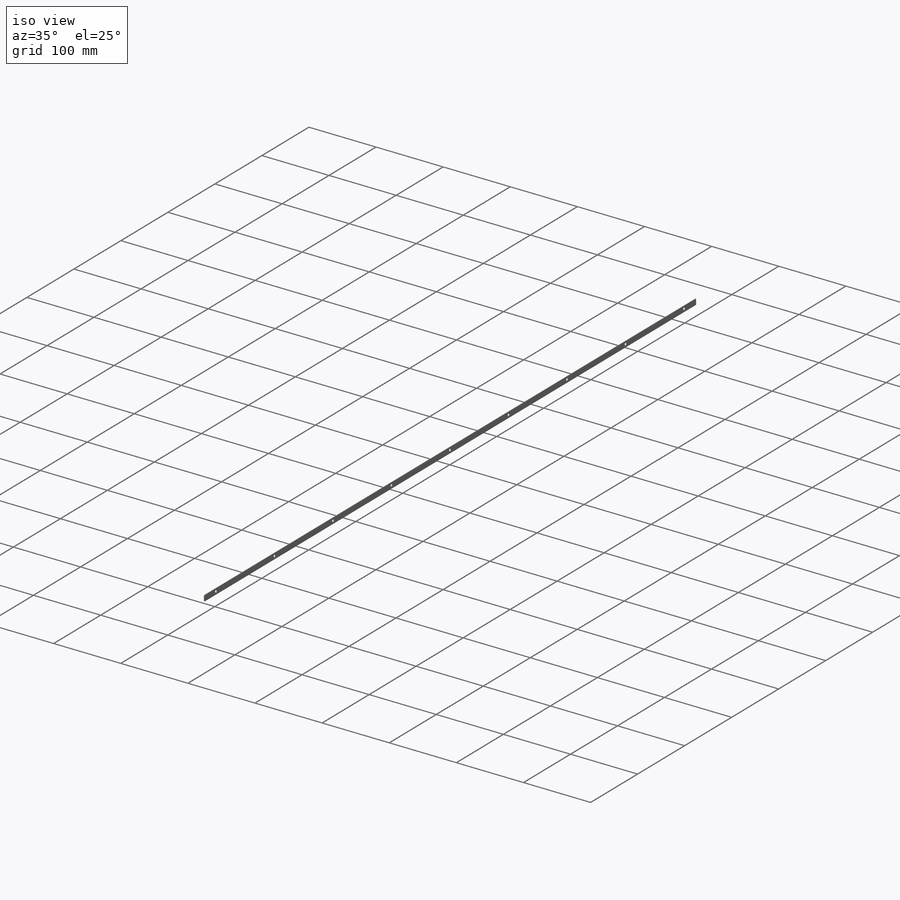
[diagram: iso view]
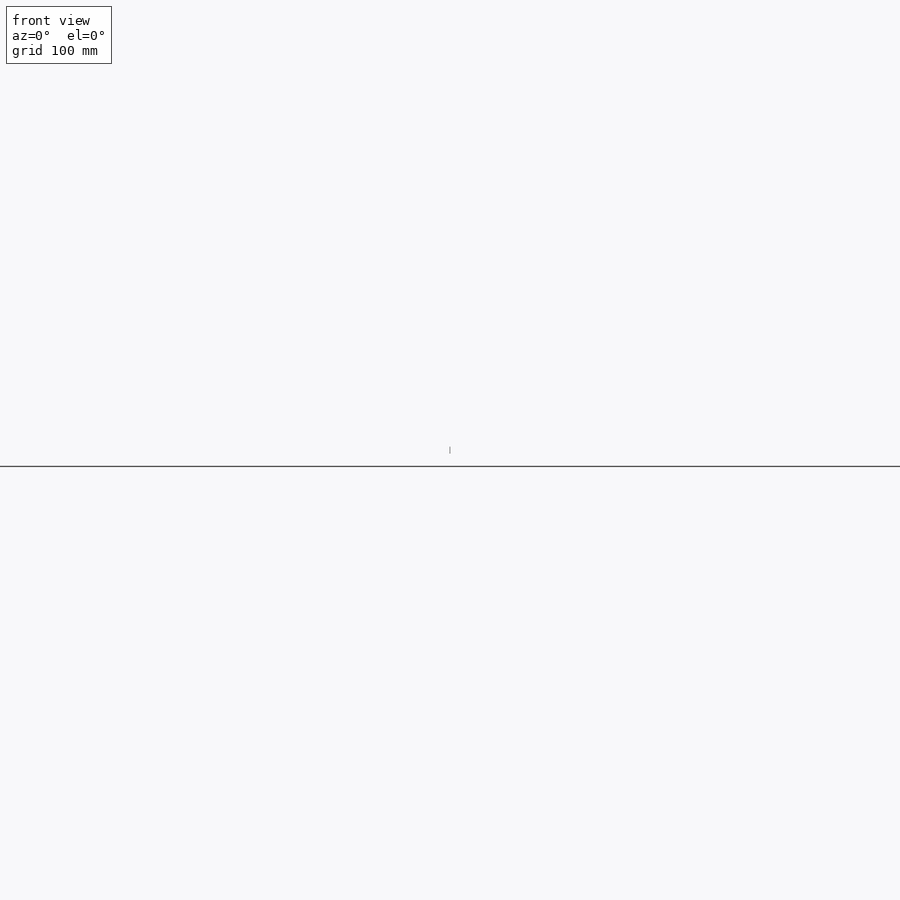
[diagram: front view]
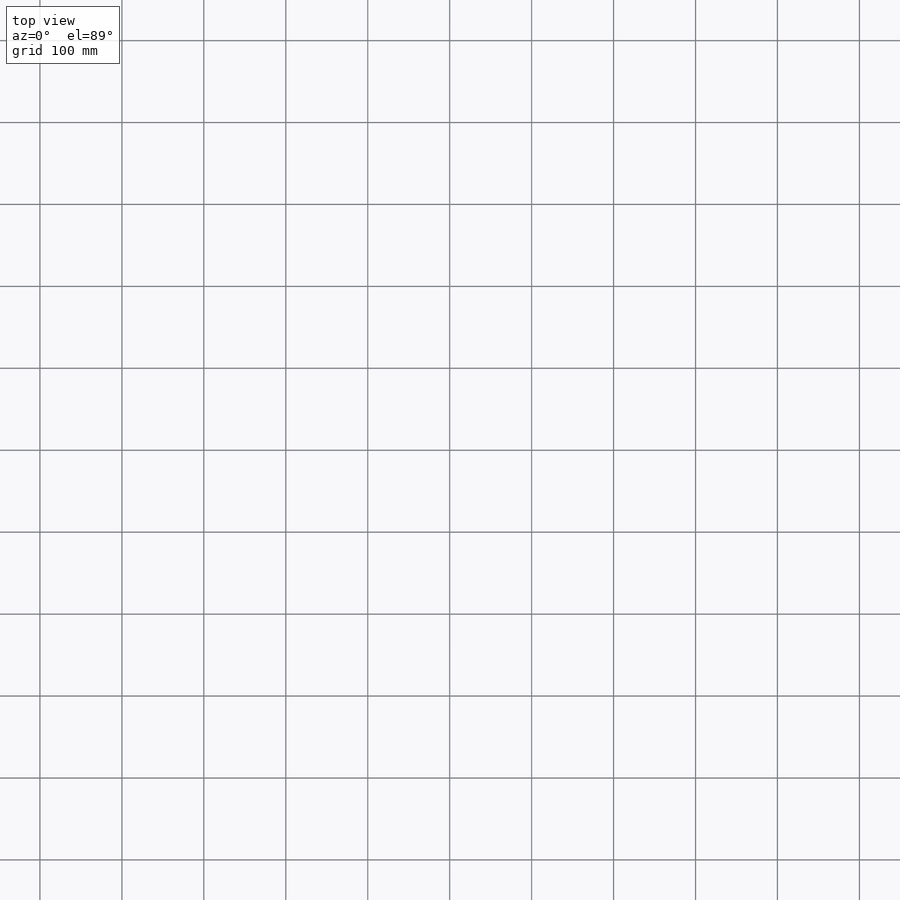
[diagram: top view]
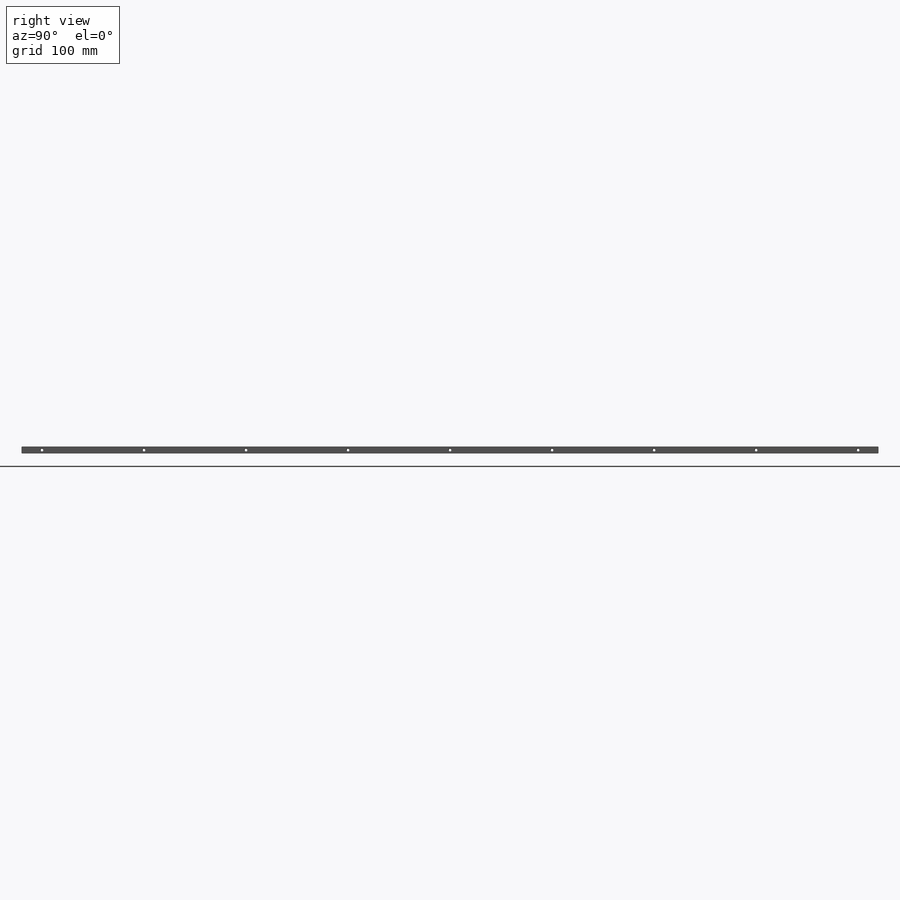
[diagram: right view]
SOLIDWORKS PART (.sldprt)
format: sldprt  version: not decoded by parser v0  size: 207,360 bytes
history: native  units: mm
features: sketch x3, fillet x2, material x1, extrude x1, hole x1, pattern_linear x1 (+11 scaffold rows collapsed)
feature tree (20):
  scaffold x11  (default folders/planes/origin — collapsed)
  material  "6061-T6 (SS)"
  sketch  "Sketch1"  dims[c1.D1=1030.0mm c1.D2=10.0mm c2.D1=8.541mm c2.D2=1046.0mm]
  extrude  "Boss-Extrude1"  Depth=0.762mm
  fillet  "Fillet1"  Radius=8mm
  hole  "CSK for #2 Flat Head Machine Screw1"  Diameter=2.4384mm Depth=0.762mm
  sketch  "Sketch3"  dims[D1=25.0mm]
  sketch  "Sketch2"  dims[hole-wizard template sketch: 55 standard entries collapsed; hole parameters kept: c17.Thru Hole Depth=0.762mm c17.Near C'Sink Dia.=4.3688mm c17.D4=~3.666174mm c17.Near C'Sink Angle=82.0deg]
  pattern_linear  "LPattern1"  Count1=9 Count2=1 Spacing1=124.5mm Spacing2=10mm
  fillet  "Fillet2"  Radius=1mm
decode coverage: 8 of 8 modeling features carry decoded parameters
note: ~ marks probable driven/reference dimensions
note: suppression state not decoded; provenance and decode notes live in map.json
